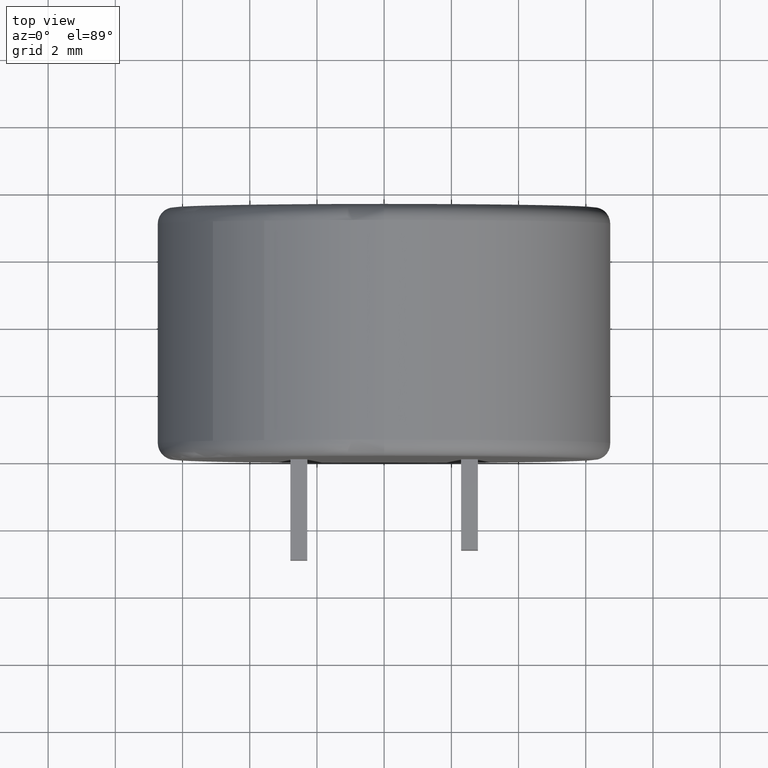
[diagram: clean part render]
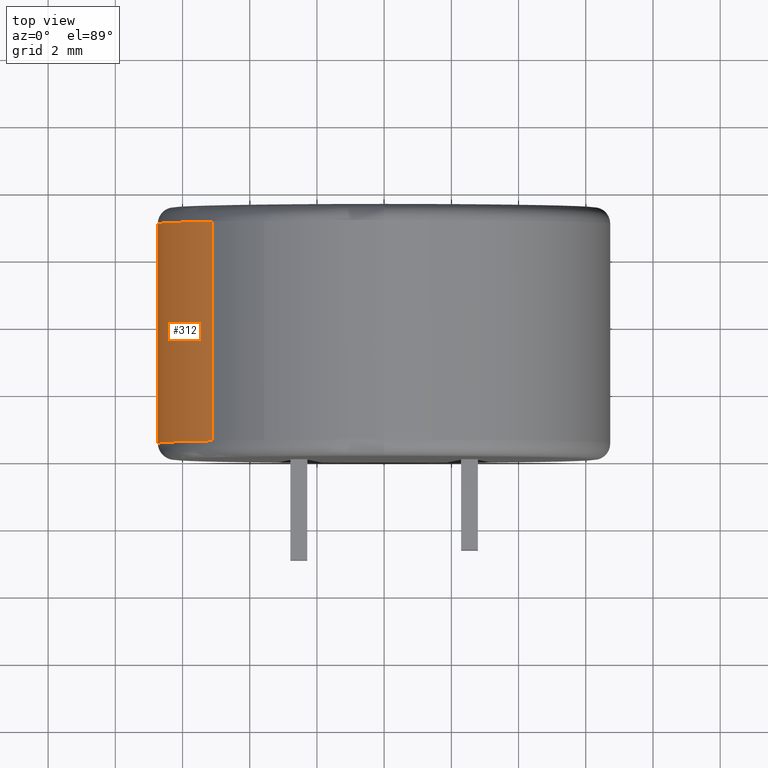
[diagram: same view with one face highlighted and labeled with its STEP entity id]
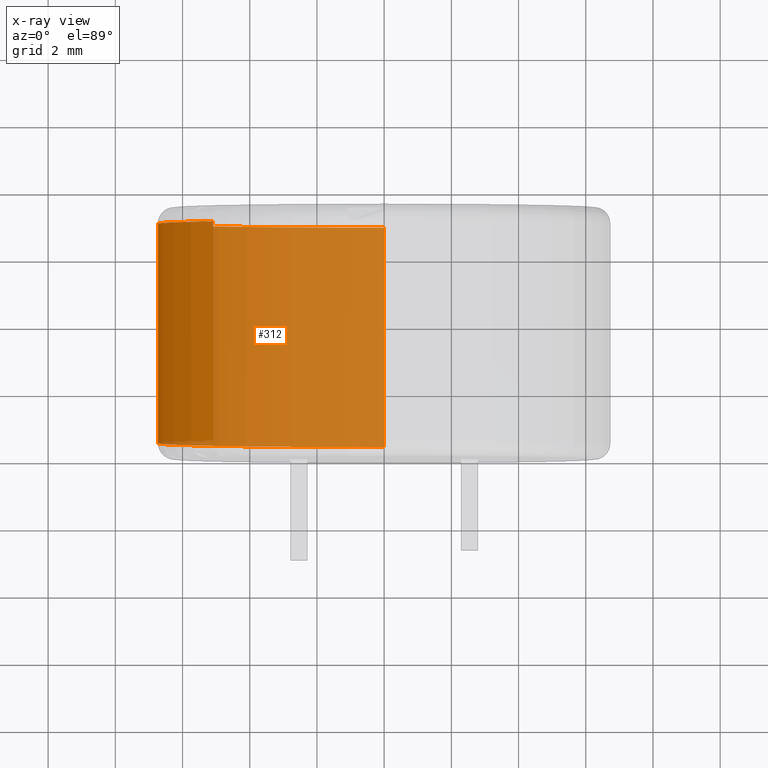
[diagram: x-ray of the same camera — body ghosted, the highlighted face saturated]
A machine part, top view. The second image highlights one B-rep face of the part: STEP entity #312.
The next image is the same camera in x-ray: the body ghosted, the highlighted face saturated — about 76% of this face is hidden behind the body in this view.
In plain terms, the highlighted cylindrical surface (partial cylindrical patch) has radius 6.75 mm, axis along (-0, -1, -0).
Its self-contained STEP definition (entity closure, byte-faithful):
#51 = DIRECTION ( 'NONE',  ( -0.0000000000000000000, -1.000000000000000000, -0.0000000000000000000 ) ) ;
#116 = AXIS2_PLACEMENT_3D ( 'NONE', #2504, #1060, #810 ) ;
#227 = ORIENTED_EDGE ( 'NONE', *, *, #543, .T. ) ;
#271 = DIRECTION ( 'NONE',  ( 0.0000000000000000000, 1.000000000000000000, 0.0000000000000000000 ) ) ;
#275 = CARTESIAN_POINT ( 'NONE',  ( -5.090071194306335500, 7.016250000000000300, 4.433246579753136600 ) ) ;
#312 = ADVANCED_FACE ( 'NONE', ( #696 ), #2069, .T. ) ;
#485 = DIRECTION ( 'NONE',  ( 0.0000000000000000000, 0.0000000000000000000, 1.000000000000000000 ) ) ;
#498 = CARTESIAN_POINT ( 'NONE',  ( 0.0000000000000000000, 7.500000000000000000, -6.750000000000000000 ) ) ;
#543 = EDGE_CURVE ( 'NONE', #1872, #1884, #759, .T. ) ;
#575 = VERTEX_POINT ( 'NONE', #275 ) ;
#586 = DIRECTION ( 'NONE',  ( 0.0000000000000000000, -1.000000000000000000, 0.0000000000000000000 ) ) ;
#646 = CARTESIAN_POINT ( 'NONE',  ( 0.0000000000000000000, 7.500000000000000000, 0.0000000000000000000 ) ) ;
#647 = CARTESIAN_POINT ( 'NONE',  ( -5.090071194306336400, 0.4837499999999997900, 4.433246579753134900 ) ) ;
#696 = FACE_OUTER_BOUND ( 'NONE', #1056, .T. ) ;
#759 = LINE ( 'NONE', #498, #1302 ) ;
#810 = DIRECTION ( 'NONE',  ( 0.0000000000000000000, 0.0000000000000000000, 1.000000000000000000 ) ) ;
#822 = CARTESIAN_POINT ( 'NONE',  ( -5.090071194306335500, 7.016249999999998500, 4.433246579753136600 ) ) ;
#829 = ORIENTED_EDGE ( 'NONE', *, *, #1814, .T. ) ;
#865 = CARTESIAN_POINT ( 'NONE',  ( 0.0000000000000000000, 0.4837499999999997900, -6.750000000000000000 ) ) ;
#1003 = ORIENTED_EDGE ( 'NONE', *, *, #1514, .T. ) ;
#1049 = DIRECTION ( 'NONE',  ( 0.0000000000000000000, 0.0000000000000000000, -1.000000000000000000 ) ) ;
#1056 = EDGE_LOOP ( 'NONE', ( #829, #227, #1003, #2423 ) ) ;
#1060 = DIRECTION ( 'NONE',  ( -0.0000000000000000000, -1.000000000000000000, -0.0000000000000000000 ) ) ;
#1187 = CIRCLE ( 'NONE', #1341, 6.750000000000000000 ) ;
#1238 = LINE ( 'NONE', #822, #1299 ) ;
#1298 = EDGE_CURVE ( 'NONE', #575, #2523, #1238, .T. ) ;
#1299 = VECTOR ( 'NONE', #586, 1000.000000000000000 ) ;
#1302 = VECTOR ( 'NONE', #51, 1000.000000000000000 ) ;
#1341 = AXIS2_PLACEMENT_3D ( 'NONE', #2617, #271, #485 ) ;
#1514 = EDGE_CURVE ( 'NONE', #1884, #2523, #1187, .T. ) ;
#1814 = EDGE_CURVE ( 'NONE', #575, #1872, #2486, .T. ) ;
#1856 = CARTESIAN_POINT ( 'NONE',  ( 0.0000000000000000000, 7.016250000000000300, -6.750000000000000000 ) ) ;
#1872 = VERTEX_POINT ( 'NONE', #1856 ) ;
#1884 = VERTEX_POINT ( 'NONE', #865 ) ;
#2047 = AXIS2_PLACEMENT_3D ( 'NONE', #646, #2300, #1049 ) ;
#2069 = CYLINDRICAL_SURFACE ( 'NONE', #2047, 6.750000000000000000 ) ;
#2300 = DIRECTION ( 'NONE',  ( -0.0000000000000000000, -1.000000000000000000, -0.0000000000000000000 ) ) ;
#2423 = ORIENTED_EDGE ( 'NONE', *, *, #1298, .F. ) ;
#2486 = CIRCLE ( 'NONE', #116, 6.750000000000000000 ) ;
#2504 = CARTESIAN_POINT ( 'NONE',  ( 0.0000000000000000000, 7.016250000000000300, 0.0000000000000000000 ) ) ;
#2523 = VERTEX_POINT ( 'NONE', #647 ) ;
#2617 = CARTESIAN_POINT ( 'NONE',  ( 0.0000000000000000000, 0.4837499999999997900, 0.0000000000000000000 ) ) ;